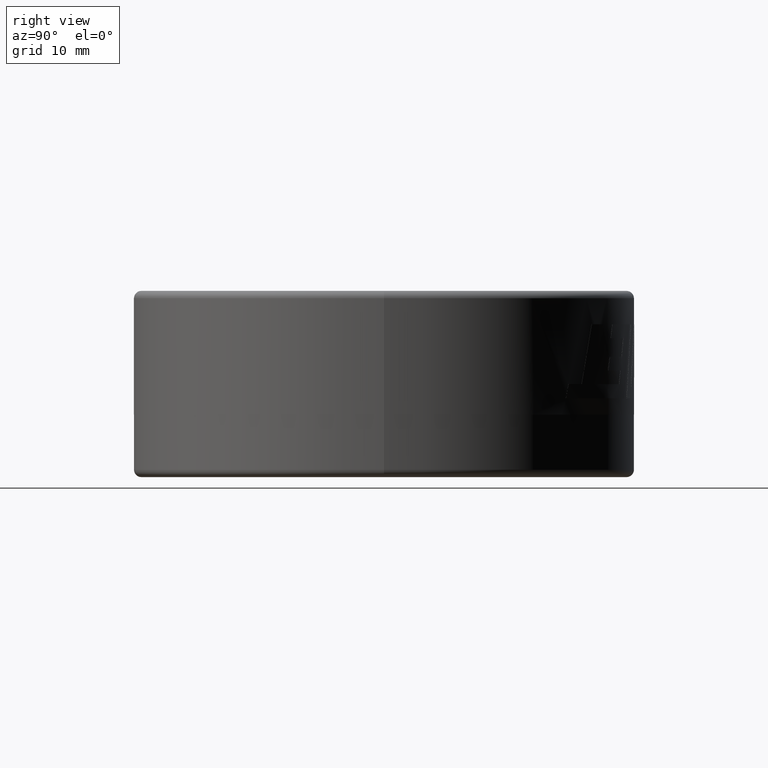
[diagram: clean part render]
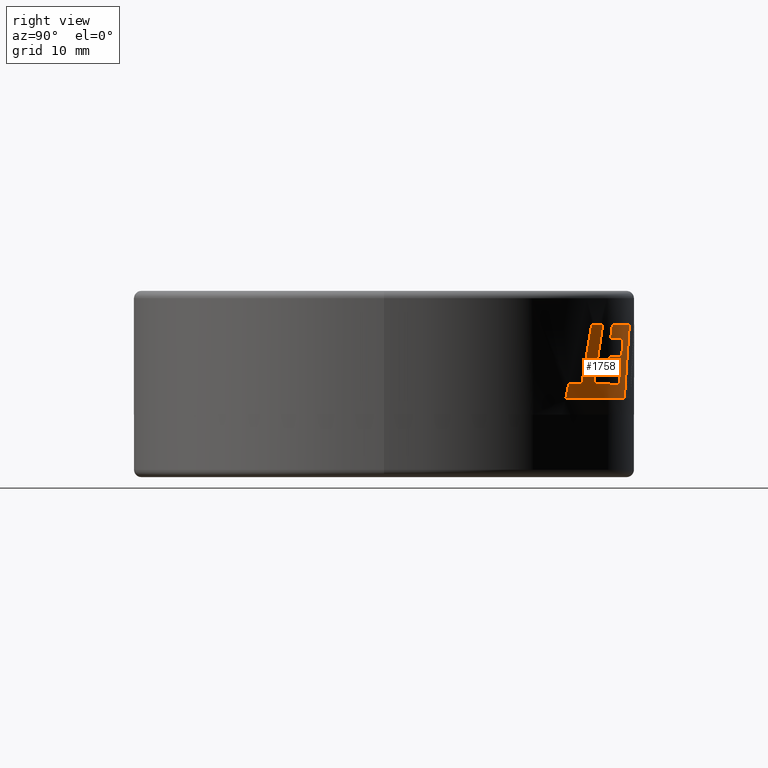
[diagram: same view with one face highlighted and labeled with its STEP entity id]
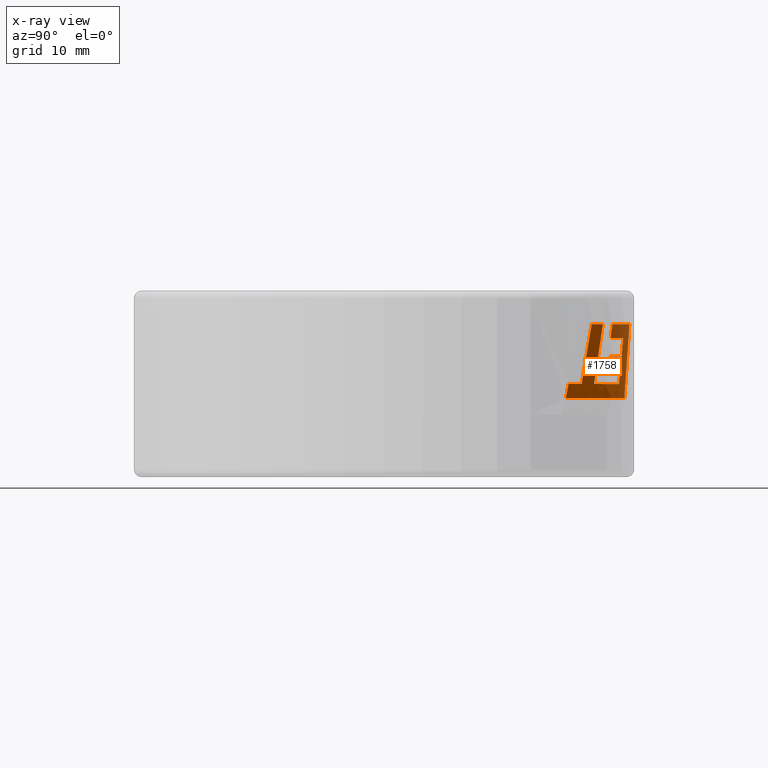
[diagram: x-ray of the same camera — body ghosted, the highlighted face saturated]
A machine part, right view. The second image highlights one B-rep face of the part: STEP entity #1758.
The next image is the same camera in x-ray: the body ghosted, the highlighted face saturated — about 0% of this face is hidden behind the body in this view.
In plain terms, the highlighted cylindrical surface (partial cylindrical patch) has radius 25.52 mm, axis along (0, 0, 1).
Its self-contained STEP definition (entity closure, byte-faithful):
#37 = CARTESIAN_POINT ( 'NONE',  ( 7.955781702243498000, 24.24821514062937300, 2.784497875116729300 ) ) ;
#44 = EDGE_CURVE ( 'NONE', #2051, #2508, #2296, .T. ) ;
#57 = CARTESIAN_POINT ( 'NONE',  ( 4.959787350091414900, 25.03339588313724900, 6.101996045413633500 ) ) ;
#92 = CARTESIAN_POINT ( 'NONE',  ( 8.333832453496732700, 24.12089626521047200, 1.387061254116977600 ) ) ;
#96 = DIRECTION ( 'NONE',  ( 1.000000000000000000, 0.0000000000000000000, 0.0000000000000000000 ) ) ;
#103 = CARTESIAN_POINT ( 'NONE',  ( 12.25418379677532100, 22.38538316569205500, -1.458571020249347600 ) ) ;
#115 = DIRECTION ( 'NONE',  ( 1.000000000000000000, 0.0000000000000000000, 0.0000000000000000000 ) ) ;
#168 = EDGE_CURVE ( 'NONE', #2743, #268, #697, .T. ) ;
#174 = CARTESIAN_POINT ( 'NONE',  ( 7.444218811155125500, 24.41012098068430400, 4.663317710627884700 ) ) ;
#182 = ORIENTED_EDGE ( 'NONE', *, *, #2602, .T. ) ;
#192 = B_SPLINE_CURVE_WITH_KNOTS ( 'NONE', 3,
 ( #1980, #919, #1767, #2687 ),
 .UNSPECIFIED., .F., .F.,
 ( 4, 4 ),
 ( 0.0000000000000000000, 1.000000000000000000 ),
 .UNSPECIFIED. ) ;
#199 = CARTESIAN_POINT ( 'NONE',  ( 17.21109121886539500, 18.84273703727472300, 0.001399153404618453500 ) ) ;
#235 = ORIENTED_EDGE ( 'NONE', *, *, #1055, .T. ) ;
#241 = EDGE_CURVE ( 'NONE', #1782, #382, #1473, .T. ) ;
#251 = AXIS2_PLACEMENT_3D ( 'NONE', #1520, #1946, #838 ) ;
#265 = CARTESIAN_POINT ( 'NONE',  ( 17.51866366459835700, 18.55712325245163500, -1.458571020249348300 ) ) ;
#268 = VERTEX_POINT ( 'NONE', #1446 ) ;
#281 = DIRECTION ( 'NONE',  ( 1.000000000000000000, 0.0000000000000000000, 0.0000000000000000000 ) ) ;
#289 = CARTESIAN_POINT ( 'NONE',  ( 11.08709490175740300, 22.98617952558389600, 2.318685668116812400 ) ) ;
#306 = CARTESIAN_POINT ( 'NONE',  ( 7.955781702243498000, 24.24821514062937300, 2.784497875116729300 ) ) ;
#309 = ORIENTED_EDGE ( 'NONE', *, *, #2775, .T. ) ;
#310 = CARTESIAN_POINT ( 'NONE',  ( 5.671138888776643400, 24.89245805834074700, 3.581807023525973600 ) ) ;
#332 = CARTESIAN_POINT ( 'NONE',  ( 11.32615066793926300, 22.86894643500523800, 1.387061254116977600 ) ) ;
#343 = CARTESIAN_POINT ( 'NONE',  ( 11.88678919084382100, 22.58261815495356500, -0.009455819191849998400 ) ) ;
#345 = EDGE_CURVE ( 'NONE', #422, #510, #2714, .T. ) ;
#352 = CARTESIAN_POINT ( 'NONE',  ( 7.785834391615661200, 24.30397444894947200, 3.410771153620447900 ) ) ;
#375 = B_SPLINE_CURVE_WITH_KNOTS ( 'NONE', 3,
 ( #1870, #1439, #796, #2083 ),
 .UNSPECIFIED., .F., .F.,
 ( 4, 4 ),
 ( 0.0000000000000000000, 1.000000000000000000 ),
 .UNSPECIFIED. ) ;
#376 = CARTESIAN_POINT ( 'NONE',  ( 11.32615066793926300, 22.86894643500523800, 1.387061254116977600 ) ) ;
#382 = VERTEX_POINT ( 'NONE', #37 ) ;
#422 = VERTEX_POINT ( 'NONE', #1128 ) ;
#435 = EDGE_CURVE ( 'NONE', #814, #2728, #192, .T. ) ;
#438 = EDGE_CURVE ( 'NONE', #728, #1782, #1021, .T. ) ;
#468 = B_SPLINE_CURVE_WITH_KNOTS ( 'NONE', 3,
 ( #2653, #2434, #2657, #1579 ),
 .UNSPECIFIED., .F., .F.,
 ( 4, 4 ),
 ( 0.0000000000000000000, 1.000000000000000000 ),
 .UNSPECIFIED. ) ;
#486 = DIRECTION ( 'NONE',  ( 0.0000000000000000000, 0.0000000000000000000, 1.000000000000000000 ) ) ;
#493 = ORIENTED_EDGE ( 'NONE', *, *, #854, .F. ) ;
#495 = CARTESIAN_POINT ( 'NONE',  ( 7.073246957200465700, 24.52018714207651200, -1.458571020249346300 ) ) ;
#503 = ORIENTED_EDGE ( 'NONE', *, *, #1661, .T. ) ;
#510 = VERTEX_POINT ( 'NONE', #699 ) ;
#540 = EDGE_CURVE ( 'NONE', #422, #645, #2452, .T. ) ;
#549 = CIRCLE ( 'NONE', #251, 25.51999999999999600 ) ;
#552 = FACE_OUTER_BOUND ( 'NONE', #1027, .T. ) ;
#562 = CARTESIAN_POINT ( 'NONE',  ( 13.87055767658303100, 21.42143855441514000, 0.001233922678247831300 ) ) ;
#566 = ORIENTED_EDGE ( 'NONE', *, *, #345, .T. ) ;
#588 = CARTESIAN_POINT ( 'NONE',  ( 0.0000000000000000000, 0.0000000000000000000, -1.458571020249348300 ) ) ;
#645 = VERTEX_POINT ( 'NONE', #1449 ) ;
#697 = B_SPLINE_CURVE_WITH_KNOTS ( 'NONE', 3,
 ( #343, #1460, #1845, #562 ),
 .UNSPECIFIED., .F., .F.,
 ( 4, 4 ),
 ( 0.0000000000000000000, 1.000000000000000000 ),
 .UNSPECIFIED. ) ;
#699 = CARTESIAN_POINT ( 'NONE',  ( 15.62714177227519300, 20.17579837402257000, 0.001233922697007131000 ) ) ;
#707 = CARTESIAN_POINT ( 'NONE',  ( 15.62714177227519300, 20.17579837402257000, 0.001233922697007131000 ) ) ;
#715 = DIRECTION ( 'NONE',  ( 0.0000000000000000000, 0.0000000000000000000, 1.000000000000000000 ) ) ;
#728 = VERTEX_POINT ( 'NONE', #1716 ) ;
#758 = ORIENTED_EDGE ( 'NONE', *, *, #2075, .T. ) ;
#775 = B_SPLINE_CURVE_WITH_KNOTS ( 'NONE', 3,
 ( #2236, #289, #954, #332 ),
 .UNSPECIFIED., .F., .F.,
 ( 4, 4 ),
 ( 0.0000000000000000000, 1.000000000000000000 ),
 .UNSPECIFIED. ) ;
#796 = CARTESIAN_POINT ( 'NONE',  ( 10.64295383197256600, 23.19518194367203300, 5.142877155556466700 ) ) ;
#804 = CARTESIAN_POINT ( 'NONE',  ( 4.959787350091414900, 25.03339588313724900, 6.101996045413633500 ) ) ;
#814 = VERTEX_POINT ( 'NONE', #92 ) ;
#832 = ORIENTED_EDGE ( 'NONE', *, *, #44, .T. ) ;
#838 = DIRECTION ( 'NONE',  ( 1.000000000000000000, 0.0000000000000000000, 0.0000000000000000000 ) ) ;
#847 = ORIENTED_EDGE ( 'NONE', *, *, #540, .F. ) ;
#851 = AXIS2_PLACEMENT_3D ( 'NONE', #2655, #486, #2226 ) ;
#854 = EDGE_CURVE ( 'NONE', #1878, #867, #2763, .T. ) ;
#865 = B_SPLINE_CURVE_WITH_KNOTS ( 'NONE', 3,
 ( #958, #1824, #310, #804 ),
 .UNSPECIFIED., .F., .F.,
 ( 4, 4 ),
 ( 0.0000000000000000000, 1.000000000000000000 ),
 .UNSPECIFIED. ) ;
#867 = VERTEX_POINT ( 'NONE', #57 ) ;
#870 = EDGE_CURVE ( 'NONE', #268, #645, #2040, .T. ) ;
#877 = CARTESIAN_POINT ( 'NONE',  ( 0.0000000000000000000, 0.0000000000000000000, 2.784497875116729300 ) ) ;
#910 = CARTESIAN_POINT ( 'NONE',  ( 15.62714177227519300, 20.17579837402257000, 0.001233922697007131000 ) ) ;
#919 = CARTESIAN_POINT ( 'NONE',  ( 8.462804619990350800, 24.07633604593402100, 0.9183064945166500300 ) ) ;
#934 = CARTESIAN_POINT ( 'NONE',  ( 16.17286113073092600, 19.75311206320757100, 0.001288700742064820700 ) ) ;
#954 = CARTESIAN_POINT ( 'NONE',  ( 11.20685394716946200, 22.92802972672879800, 1.852873461116894900 ) ) ;
#958 = CARTESIAN_POINT ( 'NONE',  ( 7.073246957200465700, 24.52018714207651200, -1.458571020249346300 ) ) ;
#995 = DIRECTION ( 'NONE',  ( 0.0000000000000000000, 0.0000000000000000000, 1.000000000000000000 ) ) ;
#1021 = CIRCLE ( 'NONE', #2586, 25.51999999999999600 ) ;
#1024 = ORIENTED_EDGE ( 'NONE', *, *, #870, .T. ) ;
#1026 = CARTESIAN_POINT ( 'NONE',  ( 0.0000000000000000000, 0.0000000000000000000, -3.125000000000000900 ) ) ;
#1027 = EDGE_LOOP ( 'NONE', ( #758, #2592, #503, #1268, #1024, #847, #566, #182, #2617, #832, #1709, #1842, #493, #235, #1561, #2580, #1637, #309 ) ) ;
#1040 = AXIS2_PLACEMENT_3D ( 'NONE', #2091, #995, #115 ) ;
#1055 = EDGE_CURVE ( 'NONE', #1878, #728, #375, .T. ) ;
#1120 = VERTEX_POINT ( 'NONE', #376 ) ;
#1128 = CARTESIAN_POINT ( 'NONE',  ( 14.20446485268735500, 21.20149943397328200, 6.101996045413631700 ) ) ;
#1143 = CARTESIAN_POINT ( 'NONE',  ( 12.36602988898163600, 22.32379234773547000, 6.101996045413631700 ) ) ;
#1174 = CARTESIAN_POINT ( 'NONE',  ( 17.31439776580641500, 18.74837606903067700, -0.4852581681473509000 ) ) ;
#1212 = CARTESIAN_POINT ( 'NONE',  ( 7.615300863533343000, 24.35794703883564700, 4.037044432124166500 ) ) ;
#1268 = ORIENTED_EDGE ( 'NONE', *, *, #168, .T. ) ;
#1308 = DIRECTION ( 'NONE',  ( 0.0000000000000000000, 0.0000000000000000000, 1.000000000000000000 ) ) ;
#1352 = B_SPLINE_CURVE_WITH_KNOTS ( 'NONE', 3,
 ( #707, #934, #2423, #1935 ),
 .UNSPECIFIED., .F., .F.,
 ( 4, 4 ),
 ( 0.0000000000000000000, 1.000000000000000000 ),
 .UNSPECIFIED. ) ;
#1439 = CARTESIAN_POINT ( 'NONE',  ( 10.51907082385456800, 23.25162533399074500, 5.622436600485049700 ) ) ;
#1446 = CARTESIAN_POINT ( 'NONE',  ( 13.87055767658303100, 21.42143855441514000, 0.001233922678247831300 ) ) ;
#1449 = CARTESIAN_POINT ( 'NONE',  ( 12.36602988898163600, 22.32379234773547000, 6.101996045413631700 ) ) ;
#1460 = CARTESIAN_POINT ( 'NONE',  ( 12.56503536161042500, 22.22561042466826100, -0.005892571901817389100 ) ) ;
#1471 = CYLINDRICAL_SURFACE ( 'NONE', #2431, 25.51999999999999600 ) ;
#1473 = B_SPLINE_CURVE_WITH_KNOTS ( 'NONE', 3,
 ( #2499, #1212, #352, #306 ),
 .UNSPECIFIED., .F., .F.,
 ( 4, 4 ),
 ( 0.0000000000000000000, 1.000000000000000000 ),
 .UNSPECIFIED. ) ;
#1510 = VERTEX_POINT ( 'NONE', #1982 ) ;
#1520 = CARTESIAN_POINT ( 'NONE',  ( 0.0000000000000000000, 0.0000000000000000000, -1.458571020249346900 ) ) ;
#1557 = AXIS2_PLACEMENT_3D ( 'NONE', #588, #2762, #2751 ) ;
#1558 = CARTESIAN_POINT ( 'NONE',  ( 17.51866366459835700, 18.55712325245163500, -1.458571020249348300 ) ) ;
#1559 = CARTESIAN_POINT ( 'NONE',  ( 13.37958681015059900, 21.73934622915295000, 2.034821296923375700 ) ) ;
#1561 = ORIENTED_EDGE ( 'NONE', *, *, #438, .T. ) ;
#1579 = CARTESIAN_POINT ( 'NONE',  ( 11.88678919084382100, 22.58261815495356500, -0.009455819191849998400 ) ) ;
#1589 = CARTESIAN_POINT ( 'NONE',  ( 13.87055767658303100, 21.42143855441514000, 0.001233922678247831300 ) ) ;
#1602 = VERTEX_POINT ( 'NONE', #2221 ) ;
#1637 = ORIENTED_EDGE ( 'NONE', *, *, #2558, .F. ) ;
#1656 = DIRECTION ( 'NONE',  ( 1.000000000000000000, 0.0000000000000000000, 0.0000000000000000000 ) ) ;
#1661 = EDGE_CURVE ( 'NONE', #2728, #2743, #468, .T. ) ;
#1709 = ORIENTED_EDGE ( 'NONE', *, *, #2613, .T. ) ;
#1716 = CARTESIAN_POINT ( 'NONE',  ( 10.76637730021524300, 23.13775096739978600, 4.663317710627884700 ) ) ;
#1738 = CARTESIAN_POINT ( 'NONE',  ( 14.20446485268735500, 21.20149943397328200, 6.101996045413631700 ) ) ;
#1758 = ADVANCED_FACE ( 'NONE', ( #552 ), #1471, .T. ) ;
#1767 = CARTESIAN_POINT ( 'NONE',  ( 8.591419389718753400, 24.03074140143904500, 0.4495517349163222200 ) ) ;
#1782 = VERTEX_POINT ( 'NONE', #174 ) ;
#1824 = CARTESIAN_POINT ( 'NONE',  ( 6.376478810609723000, 24.72118125130539600, 1.061618001638313200 ) ) ;
#1842 = ORIENTED_EDGE ( 'NONE', *, *, #2519, .T. ) ;
#1845 = CARTESIAN_POINT ( 'NONE',  ( 13.22718636453447000, 21.83802677133435900, -0.002329324611784778500 ) ) ;
#1854 = CARTESIAN_POINT ( 'NONE',  ( 10.39474413796480300, 23.30707391128809600, 6.101996045413633500 ) ) ;
#1870 = CARTESIAN_POINT ( 'NONE',  ( 10.39474413796480300, 23.30707391128809600, 6.101996045413633500 ) ) ;
#1878 = VERTEX_POINT ( 'NONE', #1854 ) ;
#1935 = CARTESIAN_POINT ( 'NONE',  ( 17.21109121886539500, 18.84273703727472300, 0.001399153404618453500 ) ) ;
#1946 = DIRECTION ( 'NONE',  ( 0.0000000000000000000, 0.0000000000000000000, 1.000000000000000000 ) ) ;
#1980 = CARTESIAN_POINT ( 'NONE',  ( 8.333832453496732700, 24.12089626521047200, 1.387061254116977600 ) ) ;
#1982 = CARTESIAN_POINT ( 'NONE',  ( 17.21109121886539500, 18.84273703727472300, 0.001399153404618453500 ) ) ;
#2014 = CARTESIAN_POINT ( 'NONE',  ( 17.41692564257420600, 18.65316799847697400, -0.9719145941983496900 ) ) ;
#2031 = CARTESIAN_POINT ( 'NONE',  ( 11.88678919084382100, 22.58261815495356500, -0.009455819191849998400 ) ) ;
#2040 = B_SPLINE_CURVE_WITH_KNOTS ( 'NONE', 3,
 ( #1589, #1559, #2201, #1143 ),
 .UNSPECIFIED., .F., .F.,
 ( 4, 4 ),
 ( 0.0000000000000000000, 1.000000000000000000 ),
 .UNSPECIFIED. ) ;
#2051 = VERTEX_POINT ( 'NONE', #265 ) ;
#2075 = EDGE_CURVE ( 'NONE', #1120, #814, #2388, .T. ) ;
#2083 = CARTESIAN_POINT ( 'NONE',  ( 10.76637730021524300, 23.13775096739978600, 4.663317710627884700 ) ) ;
#2090 = VERTEX_POINT ( 'NONE', #495 ) ;
#2091 = CARTESIAN_POINT ( 'NONE',  ( 0.0000000000000000000, 0.0000000000000000000, 6.101996045413631700 ) ) ;
#2120 = DIRECTION ( 'NONE',  ( 1.000000000000000000, 0.0000000000000000000, 0.0000000000000000000 ) ) ;
#2160 = CIRCLE ( 'NONE', #2183, 25.51999999999999600 ) ;
#2166 = CARTESIAN_POINT ( 'NONE',  ( 15.16485381668699100, 20.53386298627075500, 2.034821296935881200 ) ) ;
#2183 = AXIS2_PLACEMENT_3D ( 'NONE', #877, #1308, #2120 ) ;
#2201 = CARTESIAN_POINT ( 'NONE',  ( 12.87768234608360600, 22.04036785252708300, 4.068408671168503700 ) ) ;
#2221 = CARTESIAN_POINT ( 'NONE',  ( 10.96688819628152500, 23.04338871108719300, 2.784497875116729300 ) ) ;
#2226 = DIRECTION ( 'NONE',  ( 1.000000000000000000, 0.0000000000000000000, 0.0000000000000000000 ) ) ;
#2236 = CARTESIAN_POINT ( 'NONE',  ( 10.96688819628152500, 23.04338871108719300, 2.784497875116729300 ) ) ;
#2296 = CIRCLE ( 'NONE', #1557, 25.51999999999999600 ) ;
#2327 = EDGE_CURVE ( 'NONE', #1510, #2051, #2790, .T. ) ;
#2388 = CIRCLE ( 'NONE', #851, 25.51999999999999600 ) ;
#2410 = CARTESIAN_POINT ( 'NONE',  ( 0.0000000000000000000, 0.0000000000000000000, 6.101996045413633500 ) ) ;
#2423 = CARTESIAN_POINT ( 'NONE',  ( 16.70142132509925000, 19.30827281392780400, 0.001343478787122510600 ) ) ;
#2431 = AXIS2_PLACEMENT_3D ( 'NONE', #1026, #2757, #1656 ) ;
#2434 = CARTESIAN_POINT ( 'NONE',  ( 9.805470976328782800, 23.58936109995308400, -0.01595395618662030800 ) ) ;
#2449 = CARTESIAN_POINT ( 'NONE',  ( 0.0000000000000000000, 0.0000000000000000000, 4.663317710627884700 ) ) ;
#2452 = CIRCLE ( 'NONE', #1040, 25.51999999999999600 ) ;
#2476 = CARTESIAN_POINT ( 'NONE',  ( 8.719660216732029000, 23.98411819735594700, -0.01920302468400546200 ) ) ;
#2499 = CARTESIAN_POINT ( 'NONE',  ( 7.444218811155125500, 24.41012098068430400, 4.663317710627884700 ) ) ;
#2508 = VERTEX_POINT ( 'NONE', #103 ) ;
#2519 = EDGE_CURVE ( 'NONE', #2090, #867, #865, .T. ) ;
#2558 = EDGE_CURVE ( 'NONE', #1602, #382, #2160, .T. ) ;
#2580 = ORIENTED_EDGE ( 'NONE', *, *, #241, .T. ) ;
#2586 = AXIS2_PLACEMENT_3D ( 'NONE', #2449, #715, #96 ) ;
#2592 = ORIENTED_EDGE ( 'NONE', *, *, #435, .T. ) ;
#2602 = EDGE_CURVE ( 'NONE', #510, #1510, #1352, .T. ) ;
#2613 = EDGE_CURVE ( 'NONE', #2508, #2090, #549, .T. ) ;
#2617 = ORIENTED_EDGE ( 'NONE', *, *, #2327, .T. ) ;
#2627 = CARTESIAN_POINT ( 'NONE',  ( 14.69025469094009000, 20.87603261004683500, 4.068408671174756500 ) ) ;
#2630 = DIRECTION ( 'NONE',  ( 0.0000000000000000000, 0.0000000000000000000, 1.000000000000000000 ) ) ;
#2653 = CARTESIAN_POINT ( 'NONE',  ( 8.719660216732029000, 23.98411819735594700, -0.01920302468400546200 ) ) ;
#2655 = CARTESIAN_POINT ( 'NONE',  ( 0.0000000000000000000, 0.0000000000000000000, 1.387061254116977600 ) ) ;
#2657 = CARTESIAN_POINT ( 'NONE',  ( 10.86442724404451200, 23.12075774775708600, -0.01270488768923515300 ) ) ;
#2687 = CARTESIAN_POINT ( 'NONE',  ( 8.719660216732029000, 23.98411819735594700, -0.01920302468400546200 ) ) ;
#2714 = B_SPLINE_CURVE_WITH_KNOTS ( 'NONE', 3,
 ( #1738, #2627, #2166, #910 ),
 .UNSPECIFIED., .F., .F.,
 ( 4, 4 ),
 ( 0.0000000000000000000, 1.000000000000000000 ),
 .UNSPECIFIED. ) ;
#2728 = VERTEX_POINT ( 'NONE', #2476 ) ;
#2743 = VERTEX_POINT ( 'NONE', #2031 ) ;
#2751 = DIRECTION ( 'NONE',  ( 1.000000000000000000, 0.0000000000000000000, 0.0000000000000000000 ) ) ;
#2757 = DIRECTION ( 'NONE',  ( 0.0000000000000000000, 0.0000000000000000000, 1.000000000000000000 ) ) ;
#2762 = DIRECTION ( 'NONE',  ( 0.0000000000000000000, 0.0000000000000000000, 1.000000000000000000 ) ) ;
#2763 = CIRCLE ( 'NONE', #2779, 25.51999999999999600 ) ;
#2775 = EDGE_CURVE ( 'NONE', #1602, #1120, #775, .T. ) ;
#2779 = AXIS2_PLACEMENT_3D ( 'NONE', #2410, #2630, #281 ) ;
#2790 = B_SPLINE_CURVE_WITH_KNOTS ( 'NONE', 3,
 ( #199, #1174, #2014, #1558 ),
 .UNSPECIFIED., .F., .F.,
 ( 4, 4 ),
 ( 0.0000000000000000000, 1.000000000000000000 ),
 .UNSPECIFIED. ) ;